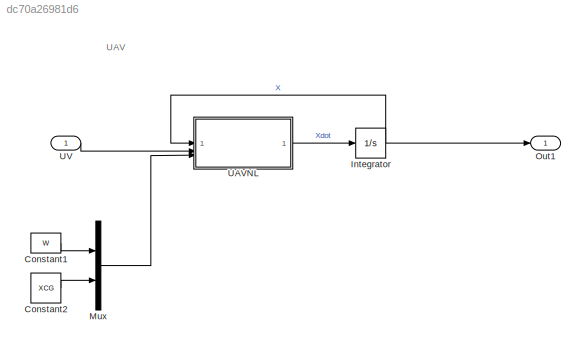
MODEL slx_dc70a26981d6
KIND model
CONFIG AbsTol = auto
CONFIG EnableMultiTasking = on
CONFIG FixedStep = auto
CONFIG MaxStep = auto
CONFIG MinStep = auto
CONFIG RelTol = 1e-3
CONFIG SampleTimeConstraint = Unconstrained
CONFIG SolverName = ode15s
CONFIG StartTime = 0.0
CONFIG StopTime = 50
BLOCK [Constant] Constant1
  Value = W
BLOCK [Constant] Constant2
  Value = XCG
BLOCK [Integrator] Integrator
  InitialCondition = zeros(1,5)
BLOCK [Mux] Mux
  DisplayOption = bar
  Inputs = 2
BLOCK [Outport] Out1
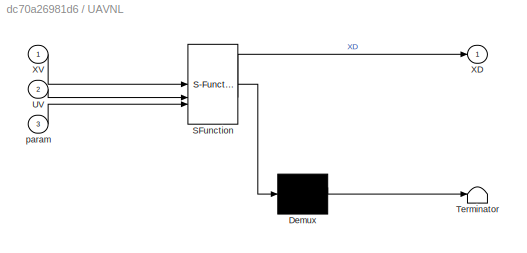
BLOCK [SubSystem] UAVNL
  ErrorFcn = Stateflow.Translate.translate
  PermitHierarchicalResolution = ExplicitOnly
  SFBlockType = MATLAB Function
  TreatAsAtomicUnit = on
BLOCK [Demux] UAVNL/ Demux 
  Outputs = 1
BLOCK [S-Function] UAVNL/ SFunction 
  EnableBusSupport = on
  FunctionName = sf_sfun
  PortCounts = [3 2]
  SFcnIsStateOwnerBlock = off
  SFunctionDeploymentMode = off
  Tag = Stateflow S-Function 2
BLOCK [Terminator] UAVNL/ Terminator 
BLOCK [Inport] UAVNL/UV
  Port = 2
BLOCK [Outport] UAVNL/XD
  VectorParamsAs1DForOutWhenUnconnected = off
BLOCK [Inport] UAVNL/XV
BLOCK [Inport] UAVNL/param
  Port = 3
BLOCK [Inport] UV
  PortDimensions = 2
ANNOTATION (root): UAV
LINE Constant1:1 -> Mux:1
LINE Constant2:1 -> Mux:2
NET Integrator:1 -> Out1:1, UAVNL:1
LINE Mux:1 -> UAVNL:3
LINE UAVNL:1 -> Integrator:1
LINE UV:1 -> UAVNL:2
note: NET lines group one-source signal fan-out (src -> all destinations, sorted); 1:1 wires keep LINE
CHART UAVNL states=1 transitions=1
  STATE_LABEL 'eML_blk_kernel()'
  STATE_LABEL 'SCRIPT:\nfunction XD = UAVNL(XV,UV,param)\n\nXD=zeros(5,1); % Inicializamos el vector de las derivadas con ceros\n\n% DATOS DE LA AERONAVE\n\nS = 0.4121;               % superficie alar (m^2)\nC=0.2192;                  % cuerda media aerodinámica (m)\nMASA=3.5;                  % Masa (Kg)\nXCGR=0.33;                % posición de referencia del CG\nIP=0.156794;                   % Momento de inercia (Kg*m^2...<+2180ch>'
CHART  states=0 transitions=0
